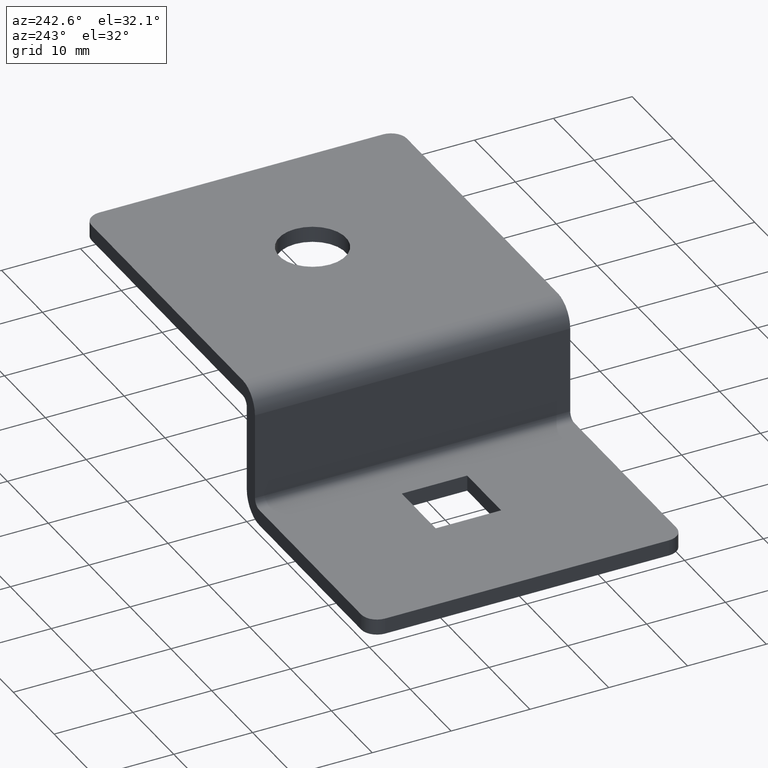
[diagram: clean part render]
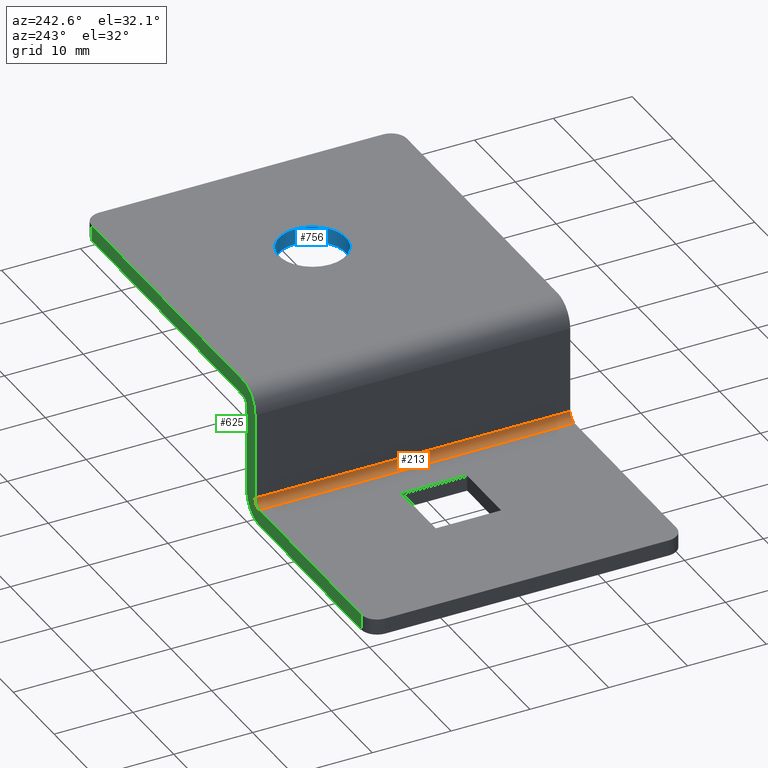
[diagram: same view with three faces highlighted in distinct colors, each labeled with its STEP entity id]
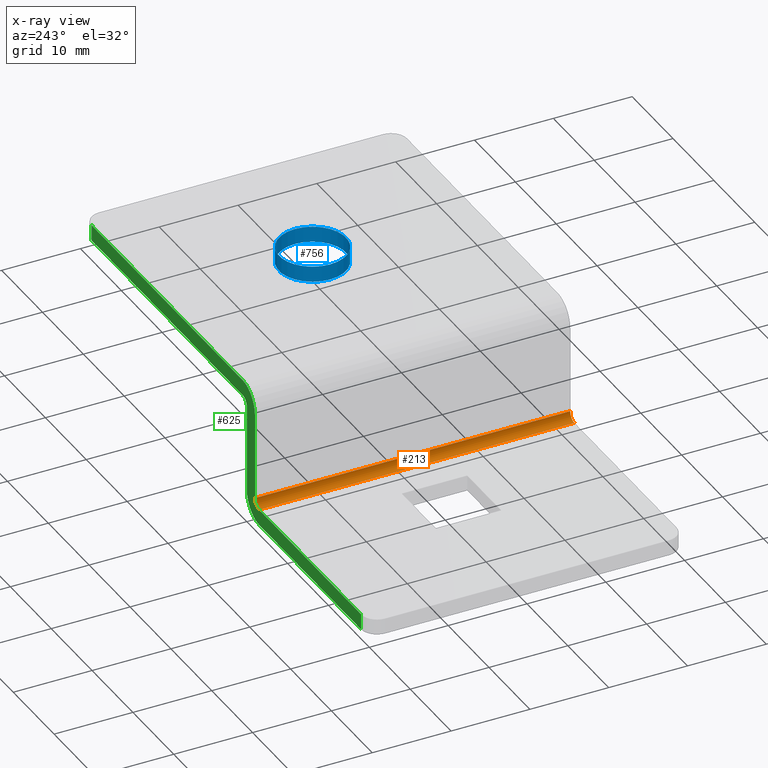
[diagram: x-ray of the same camera — body ghosted, the three highlighted faces saturated]
A machine part, auxiliary view with three faces highlighted in distinct colors.
The next image is the same camera in x-ray (body ghosted, the three faces saturated) — at least one of them is partly hidden behind the body in this view.
Their STEP definitions:

[orange] entity #213 — the highlighted cylindrical surface (edge-blend (fillet) strip) has radius 1 mm, axis along (0, 1, -0).
#155=CARTESIAN_POINT('',(-41.999999999839872,19.999999999919964,-13.999999999951855));
#156=VERTEX_POINT('',#155);
#163=CARTESIAN_POINT('',(-41.999999999839872,-19.999999999919964,-13.999999999951852));
#164=VERTEX_POINT('',#163);
#165=CARTESIAN_POINT('',(-41.999999999839872,19.999999999919964,-13.999999999951855));
#166=DIRECTION('',(0.0,-1.0,0.0));
#167=VECTOR('',#166,39.999999999839929);
#168=LINE('',#165,#167);
#169=EDGE_CURVE('',#156,#164,#168,.T.);
#181=CARTESIAN_POINT('',(-42.999999999827907,19.999999999919964,-13.999999999951855));
#182=DIRECTION('',(0.0,1.0,-6.123234E-017));
#183=DIRECTION('',(1.0,-1.232595E-032,-6.123234E-017));
#184=AXIS2_PLACEMENT_3D('',#181,#182,#183);
#185=CYLINDRICAL_SURFACE('',#184,0.999999999988034);
#186=CARTESIAN_POINT('',(-42.999999999827878,19.999999999919964,-14.999999999939890));
#187=VERTEX_POINT('',#186);
#188=CARTESIAN_POINT('',(-42.999999999827907,19.999999999919964,-13.999999999951855));
#189=DIRECTION('',(0.0,1.0,-6.123234E-017));
#190=DIRECTION('',(0.0,-6.123234E-017,-1.0));
#191=AXIS2_PLACEMENT_3D('',#188,#189,#190);
#192=CIRCLE('',#191,0.999999999988034);
#193=EDGE_CURVE('',#156,#187,#192,.T.);
#194=ORIENTED_EDGE('',*,*,#193,.T.);
#195=CARTESIAN_POINT('',(-42.999999999827878,-19.999999999919964,-14.999999999939886));
#196=VERTEX_POINT('',#195);
#197=CARTESIAN_POINT('',(-42.999999999827878,19.999999999919964,-14.999999999939890));
#198=DIRECTION('',(0.0,-1.0,0.0));
#199=VECTOR('',#198,39.999999999839929);
#200=LINE('',#197,#199);
#201=EDGE_CURVE('',#187,#196,#200,.T.);
#202=ORIENTED_EDGE('',*,*,#201,.T.);
#203=CARTESIAN_POINT('',(-42.999999999827907,-19.999999999919964,-13.999999999951852));
#204=DIRECTION('',(0.0,1.0,-6.123234E-017));
#205=DIRECTION('',(0.0,-6.123234E-017,-1.0));
#206=AXIS2_PLACEMENT_3D('',#203,#204,#205);
#207=CIRCLE('',#206,0.999999999988034);
#208=EDGE_CURVE('',#164,#196,#207,.T.);
#209=ORIENTED_EDGE('',*,*,#208,.F.);
#210=ORIENTED_EDGE('',*,*,#169,.F.);
#211=EDGE_LOOP('',(#194,#202,#209,#210));
#212=FACE_OUTER_BOUND('',#211,.T.);
#213=ADVANCED_FACE('',(#212),#185,.F.);

[blue] entity #756 — the highlighted cylindrical surface (bore or boss wall) has radius 4.25 mm, axis along (0, 0, 1).
#450=CARTESIAN_POINT('',(-13.249999999946965,0.0,0.0));
#451=VERTEX_POINT('',#450);
#452=CARTESIAN_POINT('',(-21.749999999912973,0.0,0.0));
#453=VERTEX_POINT('',#452);
#454=CARTESIAN_POINT('',(-17.499999999929969,0.0,0.0));
#455=DIRECTION('',(0.0,6.123234E-017,1.0));
#456=DIRECTION('',(-1.0,0.0,0.0));
#457=AXIS2_PLACEMENT_3D('',#454,#455,#456);
#458=CIRCLE('',#457,4.249999999983004);
#459=EDGE_CURVE('',#451,#453,#458,.T.);
#461=CARTESIAN_POINT('',(-17.499999999929969,0.0,0.0));
#462=DIRECTION('',(0.0,6.123234E-017,1.0));
#463=DIRECTION('',(-1.0,0.0,0.0));
#464=AXIS2_PLACEMENT_3D('',#461,#462,#463);
#465=CIRCLE('',#464,4.249999999983004);
#466=EDGE_CURVE('',#453,#451,#465,.T.);
#541=CARTESIAN_POINT('',(-21.749999999912973,-1.224647E-016,-2.0));
#542=VERTEX_POINT('',#541);
#543=CARTESIAN_POINT('',(-13.249999999946965,-1.224647E-016,-2.0));
#544=VERTEX_POINT('',#543);
#545=CARTESIAN_POINT('',(-17.499999999929969,-1.224647E-016,-2.0));
#546=DIRECTION('',(0.0,6.123234E-017,1.0));
#547=DIRECTION('',(-1.0,0.0,0.0));
#548=AXIS2_PLACEMENT_3D('',#545,#546,#547);
#549=CIRCLE('',#548,4.249999999983004);
#550=EDGE_CURVE('',#542,#544,#549,.T.);
#552=CARTESIAN_POINT('',(-17.499999999929969,-1.224647E-016,-2.0));
#553=DIRECTION('',(0.0,6.123234E-017,1.0));
#554=DIRECTION('',(-1.0,0.0,0.0));
#555=AXIS2_PLACEMENT_3D('',#552,#553,#554);
#556=CIRCLE('',#555,4.249999999983004);
#557=EDGE_CURVE('',#544,#542,#556,.T.);
#738=CARTESIAN_POINT('',(-17.499999999929969,0.0,0.0));
#739=DIRECTION('',(0.0,6.123234E-017,1.0));
#740=DIRECTION('',(-1.0,0.0,0.0));
#741=AXIS2_PLACEMENT_3D('',#738,#739,#740);
#742=CYLINDRICAL_SURFACE('',#741,4.249999999983004);
#743=CARTESIAN_POINT('',(-21.749999999912973,0.0,0.0));
#744=DIRECTION('',(0.0,0.0,-1.0));
#745=VECTOR('',#744,2.0);
#746=LINE('',#743,#745);
#747=EDGE_CURVE('',#453,#542,#746,.T.);
#748=ORIENTED_EDGE('',*,*,#747,.T.);
#749=ORIENTED_EDGE('',*,*,#557,.F.);
#750=ORIENTED_EDGE('',*,*,#550,.F.);
#751=ORIENTED_EDGE('',*,*,#747,.F.);
#752=ORIENTED_EDGE('',*,*,#466,.T.);
#753=ORIENTED_EDGE('',*,*,#459,.T.);
#754=EDGE_LOOP('',(#748,#749,#750,#751,#752,#753));
#755=FACE_OUTER_BOUND('',#754,.T.);
#756=ADVANCED_FACE('',(#755),#742,.F.);

[green] entity #625 — the highlighted planar face has unit normal (0, -1, 0).
#7=CARTESIAN_POINT('',(-42.999999999827907,19.999999999919964,-16.999999999939888));
#8=VERTEX_POINT('',#7);
#9=CARTESIAN_POINT('',(-39.999999999839872,19.999999999919964,-13.999999999951855));
#10=VERTEX_POINT('',#9);
#11=CARTESIAN_POINT('',(-42.999999999827907,19.999999999919964,-13.999999999951855));
#12=DIRECTION('',(0.0,-1.0,6.123234E-017));
#13=DIRECTION('',(0.0,-6.123234E-017,-1.0));
#14=AXIS2_PLACEMENT_3D('',#11,#12,#13);
#15=CIRCLE('',#14,2.999999999988035);
#16=EDGE_CURVE('',#8,#10,#15,.T.);
#49=CARTESIAN_POINT('',(-39.999999999839872,19.999999999919964,-2.999999999996363));
#50=VERTEX_POINT('',#49);
#51=CARTESIAN_POINT('',(-39.999999999839872,19.999999999919964,-13.999999999951855));
#52=DIRECTION('',(0.0,0.0,1.0));
#53=VECTOR('',#52,10.999999999955477);
#54=LINE('',#51,#53);
#55=EDGE_CURVE('',#10,#50,#54,.T.);
#80=CARTESIAN_POINT('',(-38.999999999843510,19.999999999919964,-2.000000000000001));
#81=VERTEX_POINT('',#80);
#82=CARTESIAN_POINT('',(-38.999999999843510,19.999999999919964,-2.999999999996363));
#83=DIRECTION('',(0.0,1.0,-6.123234E-017));
#84=DIRECTION('',(1.0,0.0,0.0));
#85=AXIS2_PLACEMENT_3D('',#82,#83,#84);
#86=CIRCLE('',#85,0.999999999996366);
#87=EDGE_CURVE('',#50,#81,#86,.T.);
#113=CARTESIAN_POINT('',(-38.999999999843510,19.999999999919964,-1.224647E-015));
#114=VERTEX_POINT('',#113);
#115=CARTESIAN_POINT('',(-41.999999999839872,19.999999999919964,-2.999999999996378));
#116=VERTEX_POINT('',#115);
#117=CARTESIAN_POINT('',(-38.999999999843510,19.999999999919964,-2.999999999996363));
#118=DIRECTION('',(0.0,-1.0,6.123234E-017));
#119=DIRECTION('',(1.0,0.0,0.0));
#120=AXIS2_PLACEMENT_3D('',#117,#118,#119);
#121=CIRCLE('',#120,2.999999999996366);
#122=EDGE_CURVE('',#114,#116,#121,.T.);
#155=CARTESIAN_POINT('',(-41.999999999839872,19.999999999919964,-13.999999999951855));
#156=VERTEX_POINT('',#155);
#157=CARTESIAN_POINT('',(-41.999999999839872,19.999999999919964,-2.999999999996378));
#158=DIRECTION('',(0.0,0.0,-1.0));
#159=VECTOR('',#158,10.999999999955477);
#160=LINE('',#157,#159);
#161=EDGE_CURVE('',#116,#156,#160,.T.);
#186=CARTESIAN_POINT('',(-42.999999999827878,19.999999999919964,-14.999999999939890));
#187=VERTEX_POINT('',#186);
#188=CARTESIAN_POINT('',(-42.999999999827907,19.999999999919964,-13.999999999951855));
#189=DIRECTION('',(0.0,1.0,-6.123234E-017));
#190=DIRECTION('',(0.0,-6.123234E-017,-1.0));
#191=AXIS2_PLACEMENT_3D('',#188,#189,#190);
#192=CIRCLE('',#191,0.999999999988034);
#193=EDGE_CURVE('',#156,#187,#192,.T.);
#219=CARTESIAN_POINT('',(-67.999999999720060,19.999999999919964,-16.999999999939888));
#220=VERTEX_POINT('',#219);
#221=CARTESIAN_POINT('',(-67.999999999720060,19.999999999919964,-16.999999999939888));
#222=DIRECTION('',(1.0,0.0,0.0));
#223=VECTOR('',#222,24.999999999892182);
#224=LINE('',#221,#223);
#225=EDGE_CURVE('',#220,#8,#224,.T.);
#304=CARTESIAN_POINT('',(-67.999999999720060,19.999999999919964,-14.999999999939890));
#305=VERTEX_POINT('',#304);
#313=CARTESIAN_POINT('',(-67.999999999720060,19.999999999919964,-14.999999999939890));
#314=DIRECTION('',(0.0,0.0,-1.0));
#315=VECTOR('',#314,1.999999999999998);
#316=LINE('',#313,#315);
#317=EDGE_CURVE('',#305,#220,#316,.T.);
#334=CARTESIAN_POINT('',(-42.999999999827878,19.999999999919964,-14.999999999939890));
#335=DIRECTION('',(-1.0,0.0,0.0));
#336=VECTOR('',#335,24.999999999892182);
#337=LINE('',#334,#336);
#338=EDGE_CURVE('',#187,#305,#337,.T.);
#407=CARTESIAN_POINT('',(-2.0,19.999999999919964,-1.224647E-015));
#408=VERTEX_POINT('',#407);
#409=CARTESIAN_POINT('',(-2.0,19.999999999919964,-1.224647E-015));
#410=DIRECTION('',(-1.0,0.0,0.0));
#411=VECTOR('',#410,36.999999999843510);
#412=LINE('',#409,#411);
#413=EDGE_CURVE('',#408,#114,#412,.T.);
#478=CARTESIAN_POINT('',(-2.0,19.999999999919964,-2.000000000000001));
#479=VERTEX_POINT('',#478);
#487=CARTESIAN_POINT('',(-2.0,19.999999999919964,-2.000000000000001));
#488=DIRECTION('',(0.0,0.0,1.0));
#489=VECTOR('',#488,2.0);
#490=LINE('',#487,#489);
#491=EDGE_CURVE('',#479,#408,#490,.T.);
#508=CARTESIAN_POINT('',(-38.999999999843510,19.999999999919964,-2.000000000000001));
#509=DIRECTION('',(1.0,0.0,0.0));
#510=VECTOR('',#509,36.999999999843510);
#511=LINE('',#508,#510);
#512=EDGE_CURVE('',#81,#479,#511,.T.);
#606=CARTESIAN_POINT('',(-77.000004724124679,19.999999999919964,1.700004724583805));
#607=DIRECTION('',(0.0,-1.0,0.0));
#608=DIRECTION('',(0.0,0.0,-1.0));
#609=AXIS2_PLACEMENT_3D('',#606,#607,#608);
#610=PLANE('',#609);
#611=ORIENTED_EDGE('',*,*,#225,.F.);
#612=ORIENTED_EDGE('',*,*,#317,.F.);
#613=ORIENTED_EDGE('',*,*,#338,.F.);
#614=ORIENTED_EDGE('',*,*,#193,.F.);
#615=ORIENTED_EDGE('',*,*,#161,.F.);
#616=ORIENTED_EDGE('',*,*,#122,.F.);
#617=ORIENTED_EDGE('',*,*,#413,.F.);
#618=ORIENTED_EDGE('',*,*,#491,.F.);
#619=ORIENTED_EDGE('',*,*,#512,.F.);
#620=ORIENTED_EDGE('',*,*,#87,.F.);
#621=ORIENTED_EDGE('',*,*,#55,.F.);
#622=ORIENTED_EDGE('',*,*,#16,.F.);
#623=EDGE_LOOP('',(#611,#612,#613,#614,#615,#616,#617,#618,#619,#620,#621,#622));
#624=FACE_OUTER_BOUND('',#623,.T.);
#625=ADVANCED_FACE('',(#624),#610,.F.);